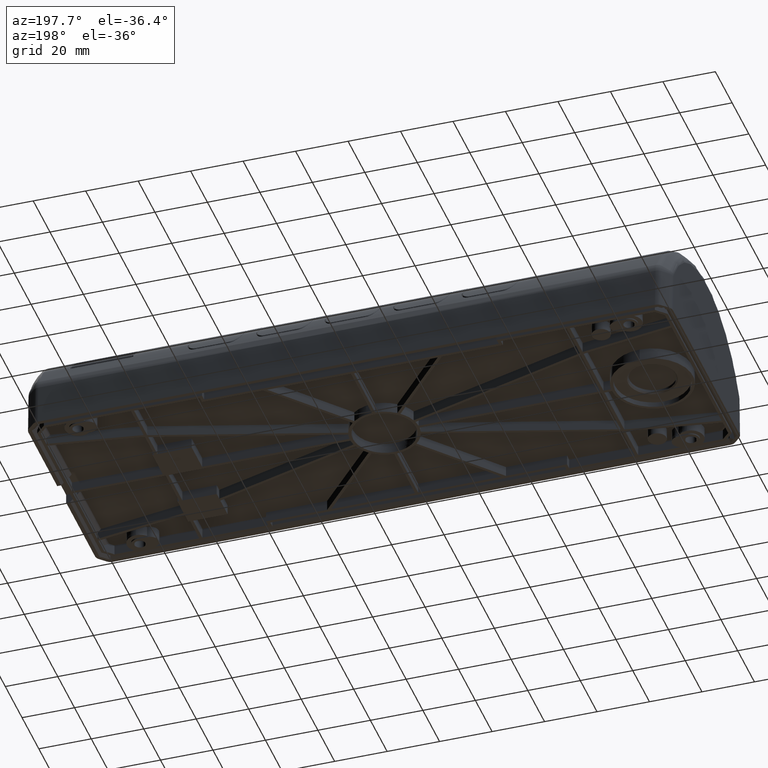
[diagram: clean part render]
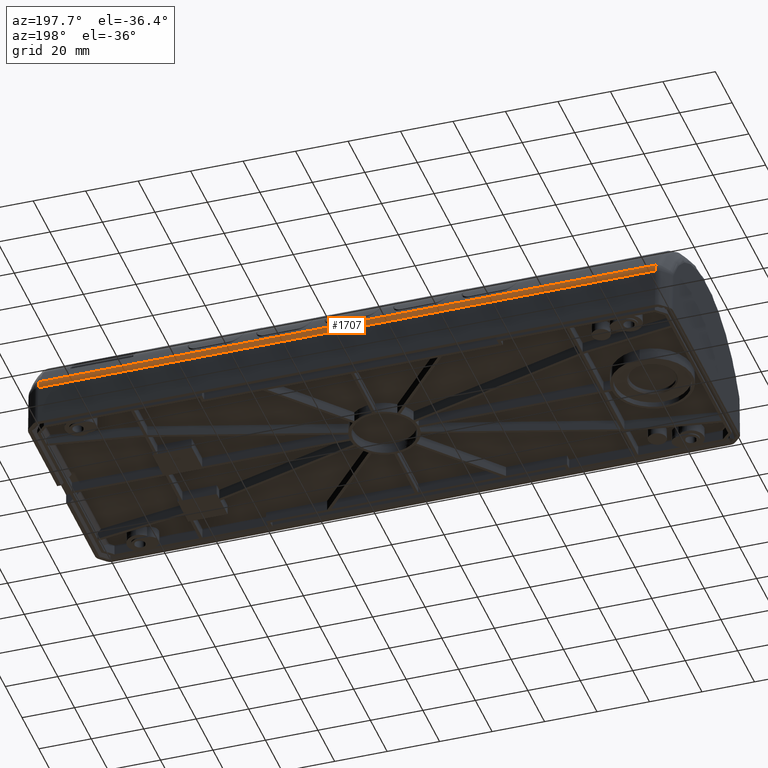
[diagram: same view with one face highlighted and labeled with its STEP entity id]
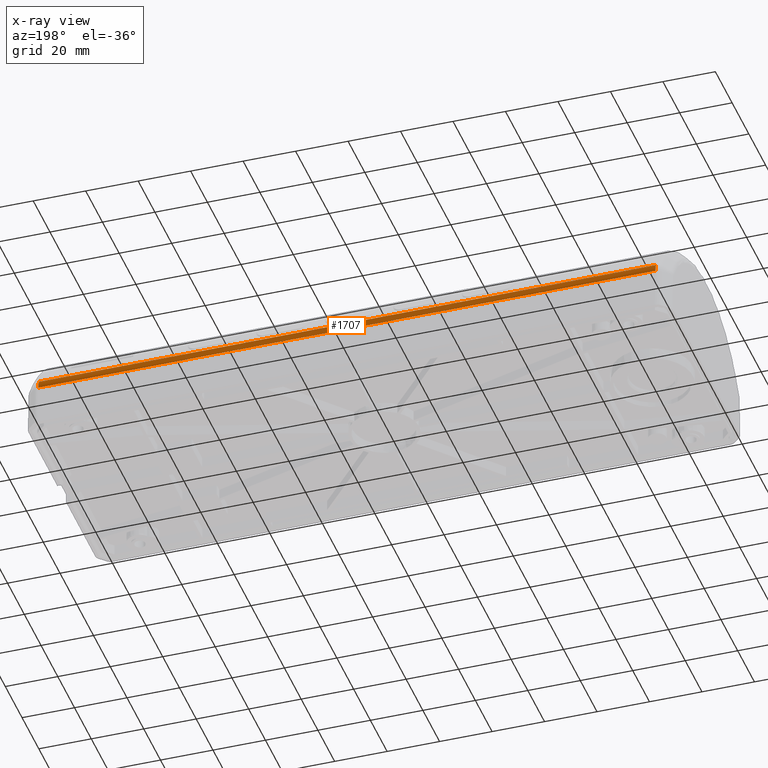
[diagram: x-ray of the same camera — body ghosted, the highlighted face saturated]
A machine part, auxiliary view. The second image highlights one B-rep face of the part: STEP entity #1707.
The next image is the same camera in x-ray: the body ghosted, the highlighted face saturated — about 0% of this face is hidden behind the body in this view.
In plain terms, the highlighted cylindrical surface (edge-blend (fillet) strip) has radius 7.5 mm, axis along (-1, 0, 0).
Its self-contained STEP definition (entity closure, byte-faithful):
#1001=CYLINDRICAL_SURFACE('',#12820,7.5);
#1707=ADVANCED_FACE('',(#2473),#1001,.T.);
#2473=FACE_OUTER_BOUND('',#3171,.T.);
#3171=EDGE_LOOP('',(#5278,#5279,#5280,#5281,#5282,#5283,#5284,#5285));
#5278=ORIENTED_EDGE('',*,*,#10018,.T.);
#5279=ORIENTED_EDGE('',*,*,#10017,.T.);
#5280=ORIENTED_EDGE('',*,*,#10016,.T.);
#5281=ORIENTED_EDGE('',*,*,#10025,.T.);
#5282=ORIENTED_EDGE('',*,*,#10026,.F.);
#5283=ORIENTED_EDGE('',*,*,#10027,.F.);
#5284=ORIENTED_EDGE('',*,*,#10028,.F.);
#5285=ORIENTED_EDGE('',*,*,#10029,.T.);
#8852=VERTEX_POINT('',#16334);
#8853=VERTEX_POINT('',#16339);
#8854=VERTEX_POINT('',#16344);
#8855=VERTEX_POINT('',#16349);
#8860=VERTEX_POINT('',#16384);
#8861=VERTEX_POINT('',#16389);
#8862=VERTEX_POINT('',#16394);
#8863=VERTEX_POINT('',#16399);
#10016=EDGE_CURVE('',#8853,#8852,#11772,.T.);
#10017=EDGE_CURVE('',#8854,#8853,#11773,.T.);
#10018=EDGE_CURVE('',#8855,#8854,#11774,.T.);
#10025=EDGE_CURVE('',#8852,#8860,#11781,.T.);
#10026=EDGE_CURVE('',#8861,#8860,#11782,.T.);
#10027=EDGE_CURVE('',#8862,#8861,#11783,.T.);
#10028=EDGE_CURVE('',#8863,#8862,#11784,.T.);
#10029=EDGE_CURVE('',#8863,#8855,#11785,.T.);
#11772=B_SPLINE_CURVE_WITH_KNOTS('',3,(#16335,#16336,#16337,#16338),.UNSPECIFIED.,
 .F.,.F.,(4,4),(0.,1.),.UNSPECIFIED.);
#11773=B_SPLINE_CURVE_WITH_KNOTS('',3,(#16340,#16341,#16342,#16343),.UNSPECIFIED.,
 .F.,.F.,(4,4),(0.,1.),.UNSPECIFIED.);
#11774=B_SPLINE_CURVE_WITH_KNOTS('',3,(#16345,#16346,#16347,#16348),.UNSPECIFIED.,
 .F.,.F.,(4,4),(0.,1.),.UNSPECIFIED.);
#11781=B_SPLINE_CURVE_WITH_KNOTS('',3,(#16380,#16381,#16382,#16383),.UNSPECIFIED.,
 .F.,.F.,(4,4),(0.,1.),.UNSPECIFIED.);
#11782=B_SPLINE_CURVE_WITH_KNOTS('',3,(#16385,#16386,#16387,#16388),.UNSPECIFIED.,
 .F.,.F.,(4,4),(0.,1.),.UNSPECIFIED.);
#11783=B_SPLINE_CURVE_WITH_KNOTS('',3,(#16390,#16391,#16392,#16393),.UNSPECIFIED.,
 .F.,.F.,(4,4),(0.,1.),.UNSPECIFIED.);
#11784=B_SPLINE_CURVE_WITH_KNOTS('',3,(#16395,#16396,#16397,#16398),.UNSPECIFIED.,
 .F.,.F.,(4,4),(0.,1.),.UNSPECIFIED.);
#11785=B_SPLINE_CURVE_WITH_KNOTS('',3,(#16400,#16401,#16402,#16403),.UNSPECIFIED.,
 .F.,.F.,(4,4),(0.,1.),.UNSPECIFIED.);
#12820=AXIS2_PLACEMENT_3D('',#16404,#13621,#13622);
#13621=DIRECTION('',(-1.,0.,0.));
#13622=DIRECTION('',(0.,0.965095570594262,0.261897956500878));
#16334=CARTESIAN_POINT('',(-53.8573593128783,44.4542447234198,16.96566165519));
#16335=CARTESIAN_POINT('',(24.6000000000025,44.4542447234198,16.96566165519));
#16336=CARTESIAN_POINT('',(-1.55245310429113,44.4542447234198,16.96566165519));
#16337=CARTESIAN_POINT('',(-27.7049062085847,44.4542447234198,16.96566165519));
#16338=CARTESIAN_POINT('',(-53.8573593128783,44.4542447234198,16.96566165519));
#16339=CARTESIAN_POINT('',(24.6000000000025,44.4542447234198,16.96566165519));
#16340=CARTESIAN_POINT('',(76.8000000000025,44.4542447234198,16.96566165519));
#16341=CARTESIAN_POINT('',(59.4000000000025,44.4542447234198,16.96566165519));
#16342=CARTESIAN_POINT('',(42.0000000000025,44.4542447234198,16.96566165519));
#16343=CARTESIAN_POINT('',(24.6000000000025,44.4542447234198,16.96566165519));
#16344=CARTESIAN_POINT('',(76.8000000000025,44.4542447234198,16.96566165519));
#16345=CARTESIAN_POINT('',(181.357359312883,44.4542447234198,16.96566165519));
#16346=CARTESIAN_POINT('',(146.50490620859,44.4542447234198,16.96566165519));
#16347=CARTESIAN_POINT('',(111.652453104296,44.4542447234198,16.96566165519));
#16348=CARTESIAN_POINT('',(76.8000000000025,44.4542447234198,16.96566165519));
#16349=CARTESIAN_POINT('',(181.357359312883,44.4542447234198,16.96566165519));
#16380=CARTESIAN_POINT('',(-53.8573593128783,44.4542447234198,16.96566165519));
#16381=CARTESIAN_POINT('',(-53.8573593128783,44.414096046782,18.1153693283653));
#16382=CARTESIAN_POINT('',(-53.8573593128783,44.1048808014695,19.2548293974637));
#16383=CARTESIAN_POINT('',(-53.8573593128783,43.5583295314967,20.2671146138355));
#16384=CARTESIAN_POINT('',(-53.8573593128783,43.5583295314967,20.2671146138356));
#16385=CARTESIAN_POINT('',(24.6000000000025,43.5583295314967,20.2671146138355));
#16386=CARTESIAN_POINT('',(-1.55245310429113,43.5583295314967,20.2671146138355));
#16387=CARTESIAN_POINT('',(-27.7049062085847,43.5583295314967,20.2671146138355));
#16388=CARTESIAN_POINT('',(-53.8573593128783,43.5583295314967,20.2671146138355));
#16389=CARTESIAN_POINT('',(24.6000000000025,43.5583295314967,20.2671146138355));
#16390=CARTESIAN_POINT('',(76.8000000000025,43.5583295314967,20.2671146138355));
#16391=CARTESIAN_POINT('',(59.4000000000025,43.5583295314967,20.2671146138355));
#16392=CARTESIAN_POINT('',(42.0000000000025,43.5583295314967,20.2671146138355));
#16393=CARTESIAN_POINT('',(24.6000000000025,43.5583295314967,20.2671146138355));
#16394=CARTESIAN_POINT('',(76.8000000000025,43.5583295314967,20.2671146138355));
#16395=CARTESIAN_POINT('',(181.357359312883,43.5583295314967,20.2671146138355));
#16396=CARTESIAN_POINT('',(146.50490620859,43.5583295314967,20.2671146138355));
#16397=CARTESIAN_POINT('',(111.652453104296,43.5583295314967,20.2671146138355));
#16398=CARTESIAN_POINT('',(76.8000000000025,43.5583295314967,20.2671146138355));
#16399=CARTESIAN_POINT('',(181.357359312883,43.5583295314967,20.2671146138356));
#16400=CARTESIAN_POINT('',(181.357359312883,43.5583295314967,20.2671146138355));
#16401=CARTESIAN_POINT('',(181.357359312883,44.1048808014695,19.2548293974637));
#16402=CARTESIAN_POINT('',(181.357359312883,44.4140960467819,18.1153693283653));
#16403=CARTESIAN_POINT('',(181.357359312883,44.4542447234198,16.96566165519));
#16404=CARTESIAN_POINT('',(158.000000000002,36.9588135207766,16.7039154299211));